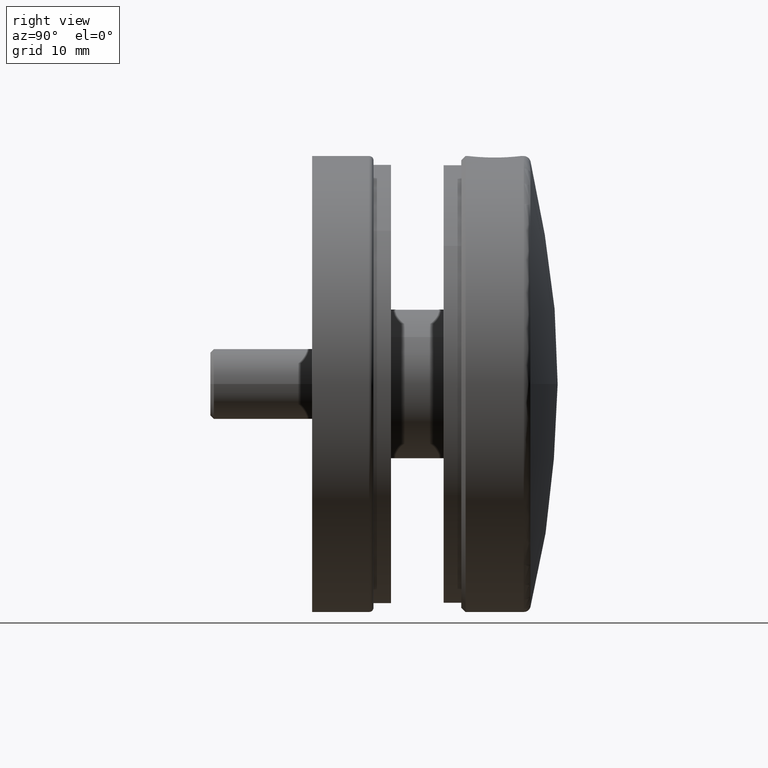
[diagram: clean part render]
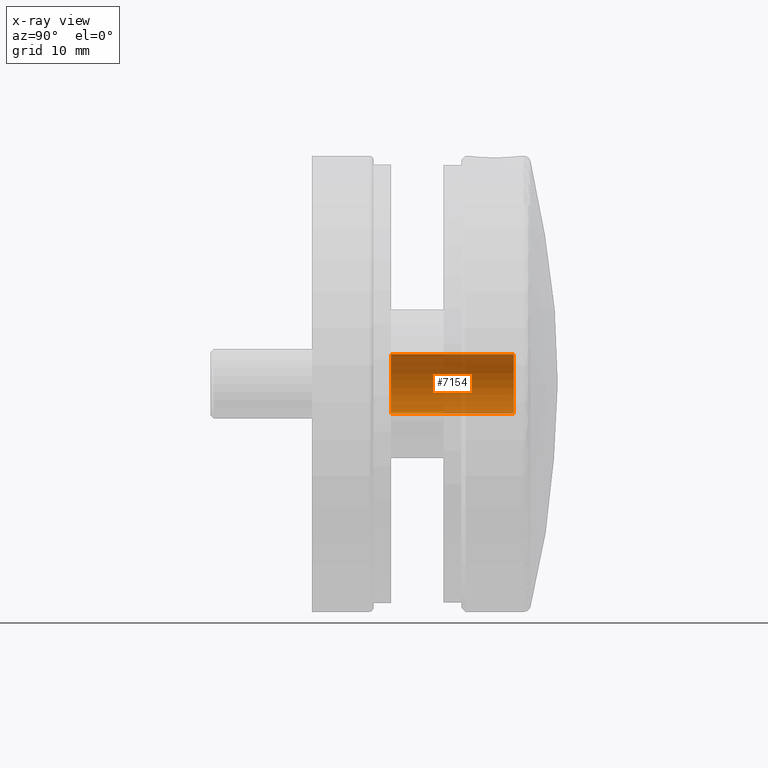
[diagram: x-ray — body ghosted, one internal face saturated and labeled with its STEP entity id]
A machine part, right view, then the same camera in x-ray: the body is ghosted and one INTERNAL B-rep face — a face not visible from any outside direction — is saturated and labeled: STEP entity #7154.
In plain terms, the highlighted cylindrical surface (edge-blend (fillet) strip) has radius 3.4 mm, axis along (-0, -1, -0).
Its self-contained STEP definition (entity closure, byte-faithful):
#1031 = CARTESIAN_POINT ( 'NONE',  ( 26.00000000000000000, -8.000000000000000000, 0.0000000000000000000 ) ) ;
#1250 = VECTOR ( 'NONE', #2286, 1000.000000000000000 ) ;
#1428 = EDGE_CURVE ( 'NONE', #5545, #4018, #2362, .T. ) ;
#2059 = VERTEX_POINT ( 'NONE', #11908 ) ;
#2141 = CARTESIAN_POINT ( 'NONE',  ( 26.00000000000000000, 6.000000000000000000, -3.399999999999996800 ) ) ;
#2235 = CARTESIAN_POINT ( 'NONE',  ( 26.00000000000000000, -8.000000000000000000, 3.399999999999996800 ) ) ;
#2286 = DIRECTION ( 'NONE',  ( -0.0000000000000000000, -1.000000000000000000, -0.0000000000000000000 ) ) ;
#2362 = CIRCLE ( 'NONE', #8878, 3.399999999999996800 ) ;
#2404 = EDGE_CURVE ( 'NONE', #2059, #9929, #10396, .T. ) ;
#2483 = EDGE_CURVE ( 'NONE', #9929, #4018, #10040, .T. ) ;
#3196 = DIRECTION ( 'NONE',  ( -0.0000000000000000000, -1.000000000000000000, -0.0000000000000000000 ) ) ;
#3601 = CARTESIAN_POINT ( 'NONE',  ( 26.00000000000000000, -8.000000000000000000, -3.399999999999996800 ) ) ;
#4018 = VERTEX_POINT ( 'NONE', #7261 ) ;
#4359 = CARTESIAN_POINT ( 'NONE',  ( 26.00000000000000000, -8.000000000000000000, 3.399999999999996800 ) ) ;
#4950 = FACE_OUTER_BOUND ( 'NONE', #14234, .T. ) ;
#5024 = DIRECTION ( 'NONE',  ( 0.0000000000000000000, 0.0000000000000000000, -1.000000000000000000 ) ) ;
#5545 = VERTEX_POINT ( 'NONE', #4359 ) ;
#5620 = DIRECTION ( 'NONE',  ( 0.0000000000000000000, 0.0000000000000000000, -1.000000000000000000 ) ) ;
#6070 = ORIENTED_EDGE ( 'NONE', *, *, #14459, .T. ) ;
#6132 = ORIENTED_EDGE ( 'NONE', *, *, #1428, .T. ) ;
#6626 = DIRECTION ( 'NONE',  ( -0.0000000000000000000, -1.000000000000000000, -0.0000000000000000000 ) ) ;
#7154 = ADVANCED_FACE ( 'NONE', ( #4950 ), #13020, .F. ) ;
#7261 = CARTESIAN_POINT ( 'NONE',  ( 26.00000000000000000, -8.000000000000000000, -3.399999999999996800 ) ) ;
#7498 = CARTESIAN_POINT ( 'NONE',  ( 26.00000000000000000, -8.000000000000000000, 0.0000000000000000000 ) ) ;
#7520 = LINE ( 'NONE', #2235, #1250 ) ;
#7606 = AXIS2_PLACEMENT_3D ( 'NONE', #13472, #6626, #5620 ) ;
#7719 = VECTOR ( 'NONE', #8082, 1000.000000000000000 ) ;
#8082 = DIRECTION ( 'NONE',  ( -0.0000000000000000000, -1.000000000000000000, -0.0000000000000000000 ) ) ;
#8470 = DIRECTION ( 'NONE',  ( -0.0000000000000000000, -1.000000000000000000, -0.0000000000000000000 ) ) ;
#8878 = AXIS2_PLACEMENT_3D ( 'NONE', #7498, #8470, #5024 ) ;
#9929 = VERTEX_POINT ( 'NONE', #2141 ) ;
#10006 = DIRECTION ( 'NONE',  ( 0.0000000000000000000, 0.0000000000000000000, -1.000000000000000000 ) ) ;
#10040 = LINE ( 'NONE', #3601, #7719 ) ;
#10396 = CIRCLE ( 'NONE', #7606, 3.399999999999996800 ) ;
#11192 = AXIS2_PLACEMENT_3D ( 'NONE', #1031, #3196, #10006 ) ;
#11387 = ORIENTED_EDGE ( 'NONE', *, *, #2483, .F. ) ;
#11908 = CARTESIAN_POINT ( 'NONE',  ( 26.00000000000000000, 6.000000000000000000, 3.399999999999996800 ) ) ;
#13020 = CYLINDRICAL_SURFACE ( 'NONE', #11192, 3.399999999999996800 ) ;
#13472 = CARTESIAN_POINT ( 'NONE',  ( 26.00000000000000000, 6.000000000000000000, 0.0000000000000000000 ) ) ;
#14234 = EDGE_LOOP ( 'NONE', ( #14822, #6070, #6132, #11387 ) ) ;
#14459 = EDGE_CURVE ( 'NONE', #2059, #5545, #7520, .T. ) ;
#14822 = ORIENTED_EDGE ( 'NONE', *, *, #2404, .F. ) ;